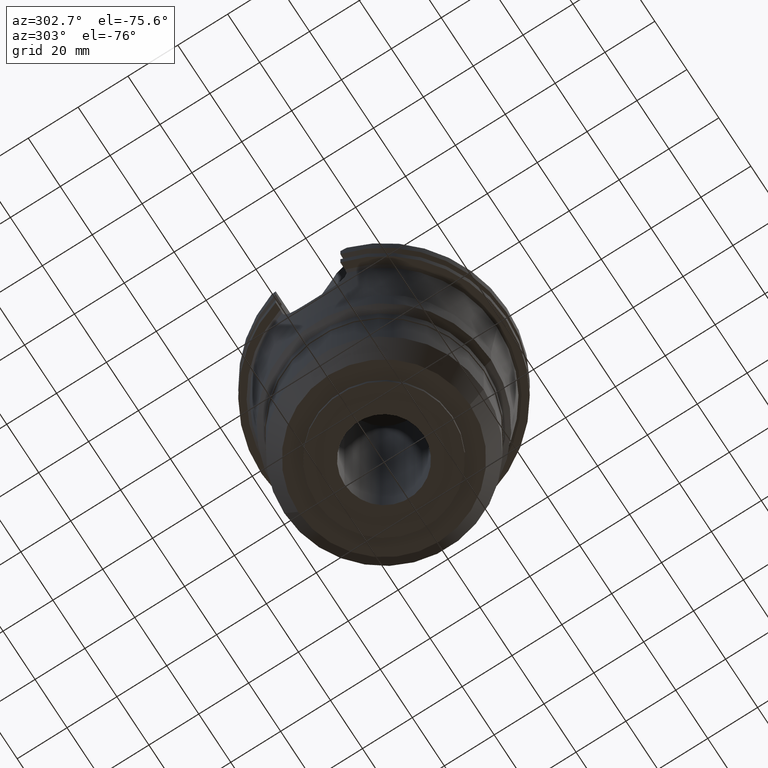
[diagram: clean part render]
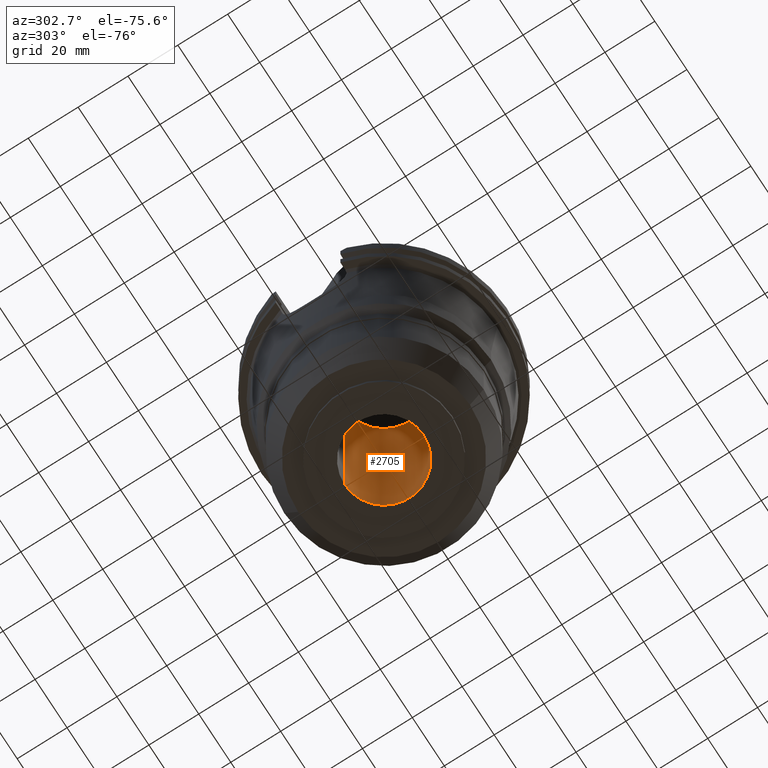
[diagram: same view with one face highlighted and labeled with its STEP entity id]
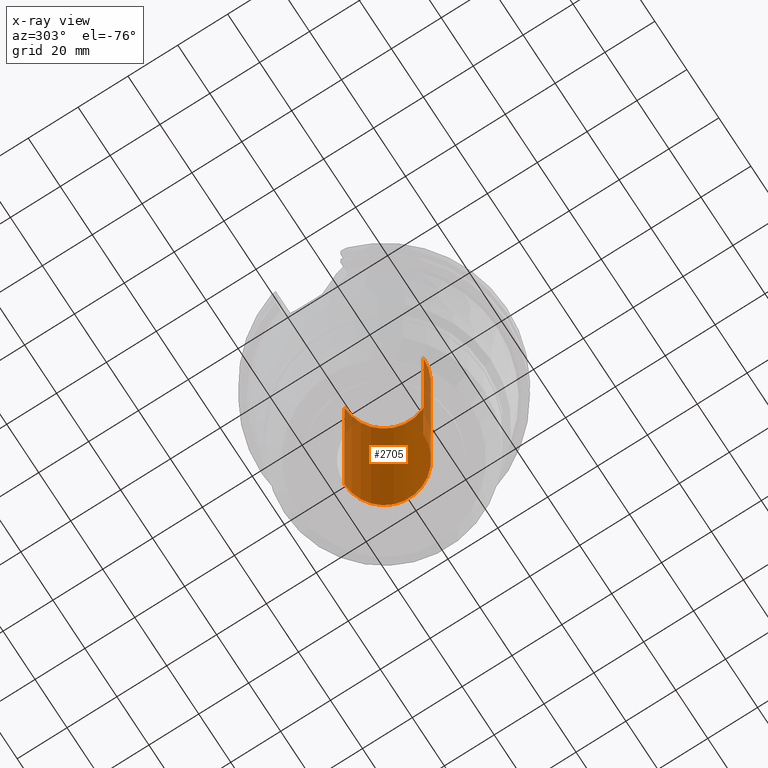
[diagram: x-ray of the same camera — body ghosted, the highlighted face saturated]
A machine part, auxiliary view. The second image highlights one B-rep face of the part: STEP entity #2705.
The next image is the same camera in x-ray: the body ghosted, the highlighted face saturated — about 11% of this face is hidden behind the body in this view.
In plain terms, the highlighted cylindrical surface (partial cylindrical patch) has radius 15.875 mm, axis along (0, 0, -1).
Its self-contained STEP definition (entity closure, byte-faithful):
#1305=CARTESIAN_POINT('',(0.E0,2.594781638033E-14,-1.04E2));
#1306=DIRECTION('',(0.E0,0.E0,-1.E0));
#1307=DIRECTION('',(0.E0,1.E0,0.E0));
#1308=AXIS2_PLACEMENT_3D('',#1305,#1306,#1307);
#1313=DIRECTION('',(0.E0,0.E0,1.E0));
#1314=VECTOR('',#1313,1.04E2);
#1315=CARTESIAN_POINT('',(0.E0,-1.5875E1,-1.04E2));
#1316=LINE('',#1315,#1314);
#1328=DIRECTION('',(0.E0,0.E0,1.E0));
#1329=VECTOR('',#1328,1.04E2);
#1330=CARTESIAN_POINT('',(0.E0,1.5875E1,-1.04E2));
#1331=LINE('',#1330,#1329);
#1342=CARTESIAN_POINT('',(0.E0,2.594781638033E-14,-9.947598300641E-14));
#1343=DIRECTION('',(0.E0,0.E0,1.E0));
#1344=DIRECTION('',(0.E0,-1.E0,0.E0));
#1345=AXIS2_PLACEMENT_3D('',#1342,#1343,#1344);
#1527=CARTESIAN_POINT('',(0.E0,1.5875E1,-9.947598300641E-14));
#1528=VERTEX_POINT('',#1527);
#1529=CARTESIAN_POINT('',(0.E0,-1.5875E1,-9.947598300641E-14));
#1530=VERTEX_POINT('',#1529);
#1531=CARTESIAN_POINT('',(0.E0,1.5875E1,-1.04E2));
#1532=VERTEX_POINT('',#1531);
#1533=CARTESIAN_POINT('',(0.E0,-1.5875E1,-1.04E2));
#1534=VERTEX_POINT('',#1533);
#2693=CARTESIAN_POINT('',(0.E0,2.594781638033E-14,1.1188E2));
#2694=DIRECTION('',(0.E0,0.E0,-1.E0));
#2695=DIRECTION('',(0.E0,-1.E0,0.E0));
#2696=AXIS2_PLACEMENT_3D('',#2693,#2694,#2695);
#2697=CYLINDRICAL_SURFACE('',#2696,1.5875E1);
#2698=ORIENTED_EDGE('',*,*,#2683,.T.);
#2700=ORIENTED_EDGE('',*,*,#2699,.F.);
#2701=ORIENTED_EDGE('',*,*,#2686,.F.);
#2702=ORIENTED_EDGE('',*,*,#2673,.F.);
#2703=EDGE_LOOP('',(#2698,#2700,#2701,#2702));
#2704=FACE_OUTER_BOUND('',#2703,.F.);
#1309=CIRCLE('',#1308,1.5875E1);
#1346=CIRCLE('',#1345,1.5875E1);
#2673=EDGE_CURVE('',#1532,#1534,#1309,.T.);
#2683=EDGE_CURVE('',#1532,#1528,#1331,.T.);
#2686=EDGE_CURVE('',#1534,#1530,#1316,.T.);
#2699=EDGE_CURVE('',#1530,#1528,#1346,.T.);
#2705=ADVANCED_FACE('',(#2704),#2697,.F.);